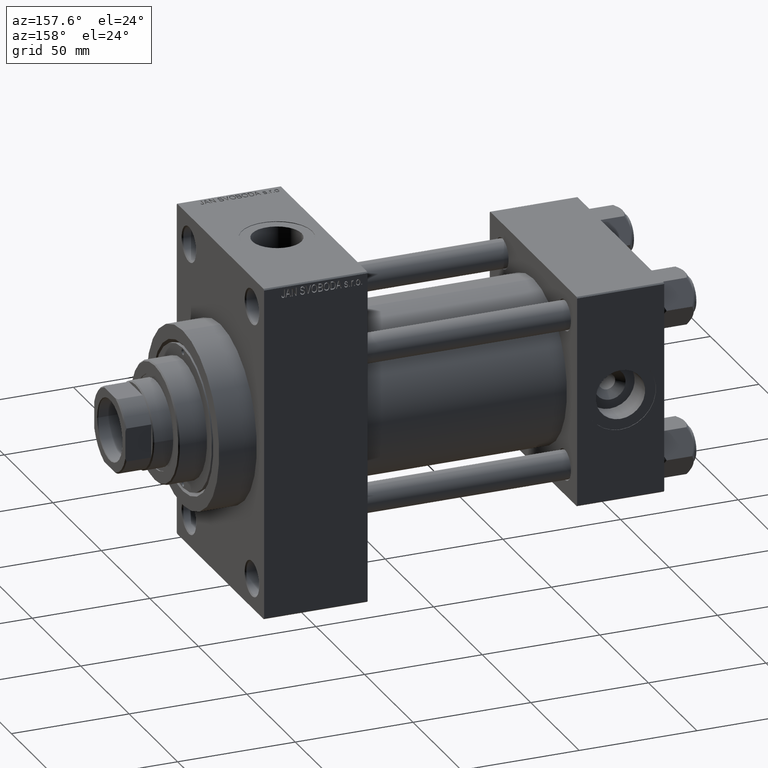
[diagram: clean part render]
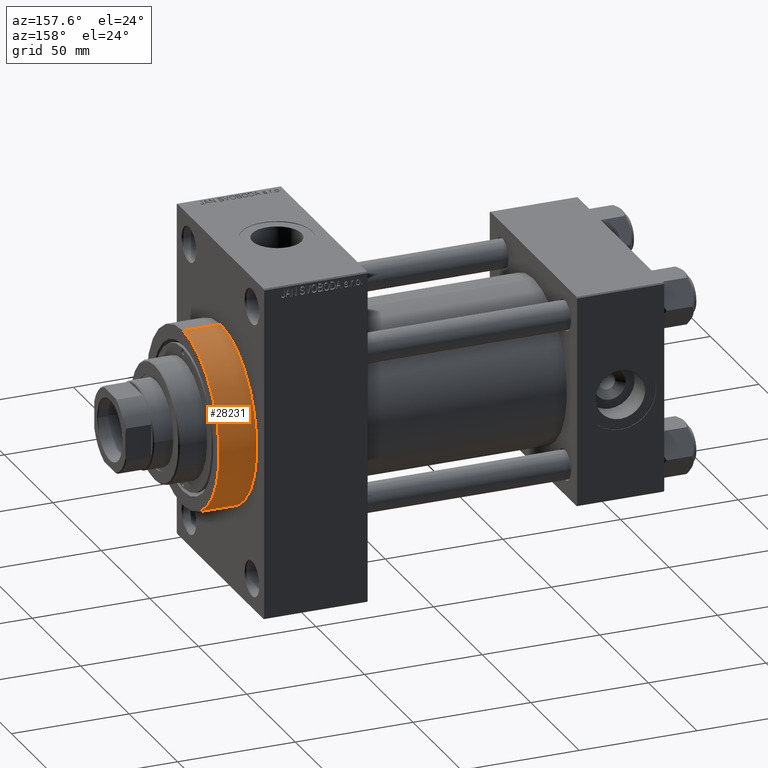
[diagram: same view with one face highlighted and labeled with its STEP entity id]
A machine part, auxiliary view. The second image highlights one B-rep face of the part: STEP entity #28231.
In plain terms, the highlighted cylindrical surface (partial cylindrical patch) has radius 37.5 mm, axis along (-1, -0, -0).
Its self-contained STEP definition (entity closure, byte-faithful):
#1915 = FACE_OUTER_BOUND ( 'NONE', #29145, .T. ) ;
#2944 = EDGE_CURVE ( 'NONE', #4431, #11095, #17196, .T. ) ;
#4431 = VERTEX_POINT ( 'NONE', #9839 ) ;
#7804 = LINE ( 'NONE', #26488, #29189 ) ;
#8267 = AXIS2_PLACEMENT_3D ( 'NONE', #38110, #31162, #27089 ) ;
#9610 = EDGE_CURVE ( 'NONE', #11095, #18356, #9805, .T. ) ;
#9666 = EDGE_CURVE ( 'NONE', #4431, #11587, #46565, .T. ) ;
#9805 = CIRCLE ( 'NONE', #23592, 37.50000000000000711 ) ;
#9839 = CARTESIAN_POINT ( 'NONE',  ( 186.0000000000000000, 4.592425496802575156E-15, -37.50000000000000711 ) ) ;
#11095 = VERTEX_POINT ( 'NONE', #14525 ) ;
#11510 = CARTESIAN_POINT ( 'NONE',  ( 169.9999999999999716, 0.000000000000000000, 0.000000000000000000 ) ) ;
#11587 = VERTEX_POINT ( 'NONE', #12208 ) ;
#12208 = CARTESIAN_POINT ( 'NONE',  ( 186.0000000000000000, 0.000000000000000000, 37.50000000000000711 ) ) ;
#12934 = CARTESIAN_POINT ( 'NONE',  ( 186.0000000000000000, 0.000000000000000000, 0.000000000000000000 ) ) ;
#14525 = CARTESIAN_POINT ( 'NONE',  ( 169.9999999999999716, 4.592425496802575156E-15, -37.50000000000000711 ) ) ;
#17196 = LINE ( 'NONE', #29813, #23354 ) ;
#18356 = VERTEX_POINT ( 'NONE', #34716 ) ;
#18860 = ORIENTED_EDGE ( 'NONE', *, *, #22764, .F. ) ;
#22764 = EDGE_CURVE ( 'NONE', #11587, #18356, #7804, .T. ) ;
#23354 = VECTOR ( 'NONE', #32687, 1000.000000000000000 ) ;
#23592 = AXIS2_PLACEMENT_3D ( 'NONE', #11510, #31398, #26859 ) ;
#23997 = AXIS2_PLACEMENT_3D ( 'NONE', #12934, #28274, #34758 ) ;
#26488 = CARTESIAN_POINT ( 'NONE',  ( 186.0000000000000000, 0.000000000000000000, 37.50000000000000711 ) ) ;
#26859 = DIRECTION ( 'NONE',  ( 0.000000000000000000, 0.000000000000000000, -1.000000000000000000 ) ) ;
#27089 = DIRECTION ( 'NONE',  ( 0.000000000000000000, 0.000000000000000000, -1.000000000000000000 ) ) ;
#27687 = ORIENTED_EDGE ( 'NONE', *, *, #9610, .T. ) ;
#28231 = ADVANCED_FACE ( 'NONE', ( #1915 ), #38816, .T. ) ;
#28274 = DIRECTION ( 'NONE',  ( -1.000000000000000000, -0.000000000000000000, -0.000000000000000000 ) ) ;
#29145 = EDGE_LOOP ( 'NONE', ( #32572, #40764, #27687, #18860 ) ) ;
#29189 = VECTOR ( 'NONE', #44704, 1000.000000000000000 ) ;
#29813 = CARTESIAN_POINT ( 'NONE',  ( 186.0000000000000000, 4.592425496802575156E-15, -37.50000000000000711 ) ) ;
#31162 = DIRECTION ( 'NONE',  ( 1.000000000000000000, 0.000000000000000000, 0.000000000000000000 ) ) ;
#31398 = DIRECTION ( 'NONE',  ( 1.000000000000000000, 0.000000000000000000, 0.000000000000000000 ) ) ;
#32572 = ORIENTED_EDGE ( 'NONE', *, *, #9666, .F. ) ;
#32687 = DIRECTION ( 'NONE',  ( -1.000000000000000000, -0.000000000000000000, -0.000000000000000000 ) ) ;
#34716 = CARTESIAN_POINT ( 'NONE',  ( 169.9999999999999716, 0.000000000000000000, 37.50000000000000711 ) ) ;
#34758 = DIRECTION ( 'NONE',  ( 0.000000000000000000, 0.000000000000000000, 1.000000000000000000 ) ) ;
#38110 = CARTESIAN_POINT ( 'NONE',  ( 186.0000000000000000, 0.000000000000000000, 0.000000000000000000 ) ) ;
#38816 = CYLINDRICAL_SURFACE ( 'NONE', #23997, 37.50000000000000711 ) ;
#40764 = ORIENTED_EDGE ( 'NONE', *, *, #2944, .T. ) ;
#44704 = DIRECTION ( 'NONE',  ( -1.000000000000000000, -0.000000000000000000, -0.000000000000000000 ) ) ;
#46565 = CIRCLE ( 'NONE', #8267, 37.50000000000000711 ) ;